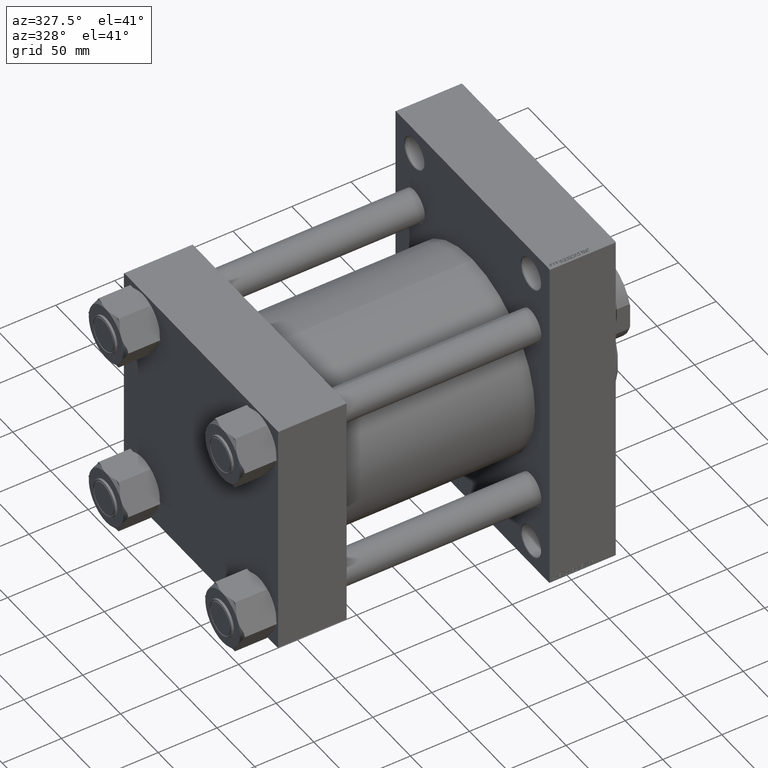
[diagram: clean part render]
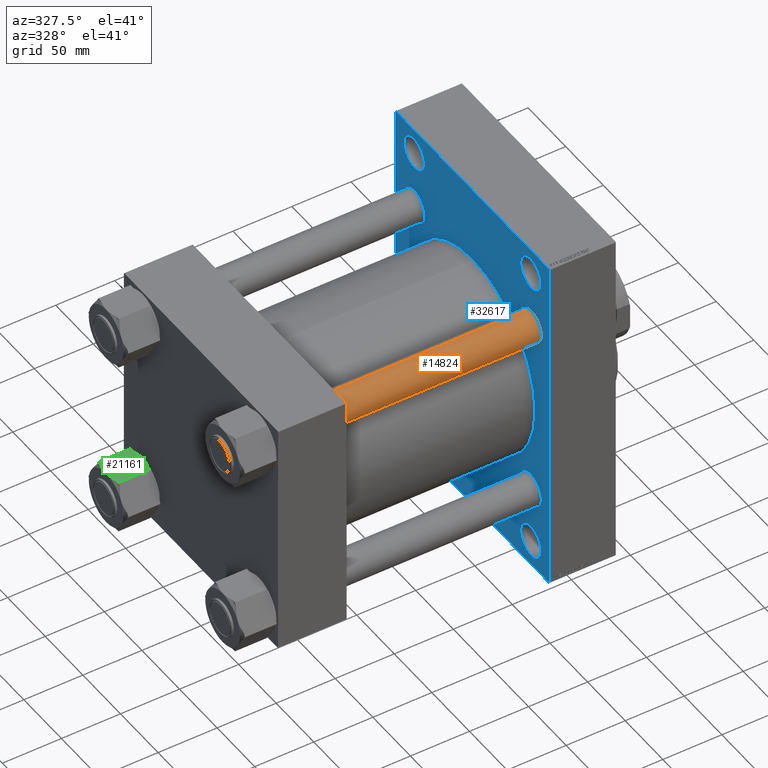
[diagram: same view with three faces highlighted in distinct colors, each labeled with its STEP entity id]
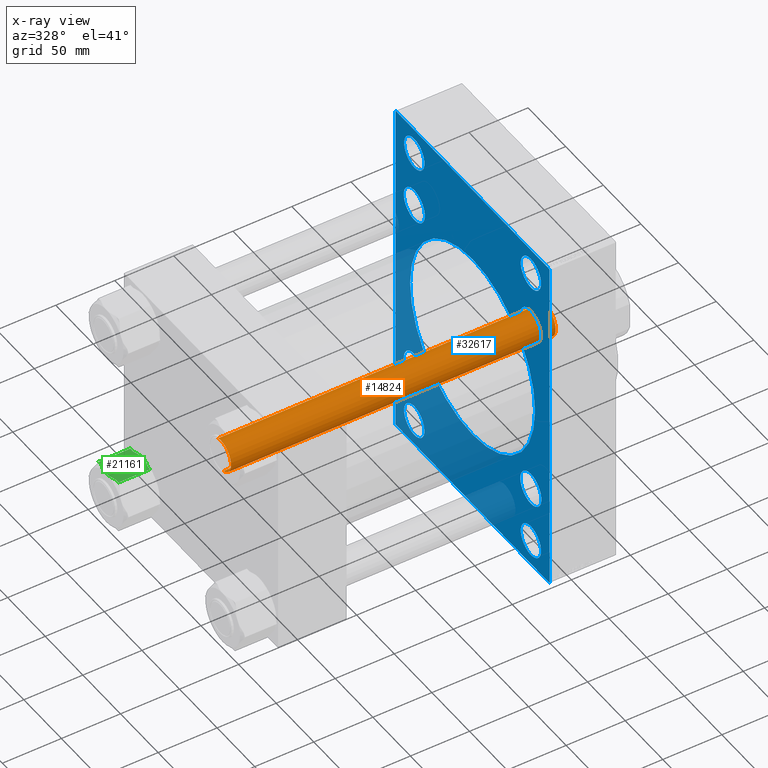
[diagram: x-ray of the same camera — body ghosted, the three highlighted faces saturated]
A machine part, auxiliary view with three faces highlighted in distinct colors.
The next image is the same camera in x-ray (body ghosted, the three faces saturated) — at least one of them is partly hidden behind the body in this view.
Their STEP definitions:

[orange] entity #14824 — the highlighted cylindrical surface (edge-blend (fillet) strip) has radius 13.5 mm, axis along (1, 0, 0).
#131 = CIRCLE ( 'NONE', #921, 13.50000000000000000 ) ;
#921 = AXIS2_PLACEMENT_3D ( 'NONE', #42675, #39309, #6728 ) ;
#1297 = FACE_OUTER_BOUND ( 'NONE', #30055, .T. ) ;
#2398 = CARTESIAN_POINT ( 'NONE',  ( -13.50000000000000000, 0.000000000000000000, 276.0000000000000000 ) ) ;
#2874 = LINE ( 'NONE', #2398, #26007 ) ;
#2973 = DIRECTION ( 'NONE',  ( -0.000000000000000000, -0.000000000000000000, -1.000000000000000000 ) ) ;
#4152 = DIRECTION ( 'NONE',  ( 0.000000000000000000, 0.000000000000000000, -1.000000000000000000 ) ) ;
#4225 = CARTESIAN_POINT ( 'NONE',  ( -13.50000000000000000, 0.000000000000000000, 0.4999999999999449329 ) ) ;
#6728 = DIRECTION ( 'NONE',  ( 1.000000000000000000, 0.000000000000000000, 0.000000000000000000 ) ) ;
#9488 = CYLINDRICAL_SURFACE ( 'NONE', #37685, 13.50000000000000000 ) ;
#10455 = VERTEX_POINT ( 'NONE', #19872 ) ;
#13165 = EDGE_CURVE ( 'NONE', #21433, #34681, #47044, .T. ) ;
#14824 = ADVANCED_FACE ( 'NONE', ( #1297 ), #9488, .T. ) ;
#14941 = CARTESIAN_POINT ( 'NONE',  ( 13.50000000000000000, 1.653273178848926867E-15, 275.4999999999999432 ) ) ;
#17604 = DIRECTION ( 'NONE',  ( -0.000000000000000000, -0.000000000000000000, -1.000000000000000000 ) ) ;
#19872 = CARTESIAN_POINT ( 'NONE',  ( -13.50000000000000000, 0.000000000000000000, 275.4999999999999432 ) ) ;
#20337 = EDGE_CURVE ( 'NONE', #10455, #21433, #21274, .T. ) ;
#21236 = DIRECTION ( 'NONE',  ( -0.000000000000000000, -0.000000000000000000, -1.000000000000000000 ) ) ;
#21274 = CIRCLE ( 'NONE', #29724, 13.50000000000000000 ) ;
#21433 = VERTEX_POINT ( 'NONE', #14941 ) ;
#22967 = DIRECTION ( 'NONE',  ( 1.000000000000000000, 0.000000000000000000, 0.000000000000000000 ) ) ;
#24601 = EDGE_CURVE ( 'NONE', #10455, #25808, #2874, .T. ) ;
#25808 = VERTEX_POINT ( 'NONE', #4225 ) ;
#26007 = VECTOR ( 'NONE', #17604, 1000.000000000000000 ) ;
#29537 = CARTESIAN_POINT ( 'NONE',  ( 13.50000000000000000, 1.653273178848926867E-15, 0.4999999999999449329 ) ) ;
#29724 = AXIS2_PLACEMENT_3D ( 'NONE', #30446, #4152, #22967 ) ;
#30055 = EDGE_LOOP ( 'NONE', ( #36651, #33195, #42802, #37717 ) ) ;
#30446 = CARTESIAN_POINT ( 'NONE',  ( 0.000000000000000000, 0.000000000000000000, 275.4999999999999432 ) ) ;
#33195 = ORIENTED_EDGE ( 'NONE', *, *, #13165, .T. ) ;
#34681 = VERTEX_POINT ( 'NONE', #29537 ) ;
#35302 = DIRECTION ( 'NONE',  ( -1.000000000000000000, 0.000000000000000000, 0.000000000000000000 ) ) ;
#36651 = ORIENTED_EDGE ( 'NONE', *, *, #20337, .T. ) ;
#37685 = AXIS2_PLACEMENT_3D ( 'NONE', #39644, #2973, #35302 ) ;
#37717 = ORIENTED_EDGE ( 'NONE', *, *, #24601, .F. ) ;
#39309 = DIRECTION ( 'NONE',  ( -0.000000000000000000, -0.000000000000000000, 1.000000000000000000 ) ) ;
#39644 = CARTESIAN_POINT ( 'NONE',  ( 0.000000000000000000, 0.000000000000000000, 276.0000000000000000 ) ) ;
#39968 = VECTOR ( 'NONE', #21236, 1000.000000000000000 ) ;
#41574 = EDGE_CURVE ( 'NONE', #34681, #25808, #131, .T. ) ;
#42675 = CARTESIAN_POINT ( 'NONE',  ( 0.000000000000000000, 0.000000000000000000, 0.4999999999999449329 ) ) ;
#42802 = ORIENTED_EDGE ( 'NONE', *, *, #41574, .T. ) ;
#43873 = CARTESIAN_POINT ( 'NONE',  ( 13.50000000000000000, 1.653273178848926867E-15, 276.0000000000000000 ) ) ;
#47044 = LINE ( 'NONE', #43873, #39968 ) ;

[blue] entity #32617 — the highlighted planar face has unit normal (-1, 0, 0).
#424 = CARTESIAN_POINT ( 'NONE',  ( 229.9999999999999716, 77.50000000000002842, 113.0000000000000426 ) ) ;
#740 = CIRCLE ( 'NONE', #43880, 14.00000000000001243 ) ;
#886 = AXIS2_PLACEMENT_3D ( 'NONE', #35979, #25132, #31652 ) ;
#890 = CIRCLE ( 'NONE', #43288, 14.00000000000001243 ) ;
#1086 = FACE_BOUND ( 'NONE', #41828, .T. ) ;
#1524 = CIRCLE ( 'NONE', #32361, 83.00000000000000000 ) ;
#1578 = ORIENTED_EDGE ( 'NONE', *, *, #16878, .T. ) ;
#1607 = ORIENTED_EDGE ( 'NONE', *, *, #36143, .T. ) ;
#1649 = CARTESIAN_POINT ( 'NONE',  ( 229.9999999999999716, -77.44999999999996021, -91.45000000000004547 ) ) ;
#1904 = CARTESIAN_POINT ( 'NONE',  ( 229.9999999999999716, -125.2499999999971436, -125.2500000000041069 ) ) ;
#2270 = VERTEX_POINT ( 'NONE', #29842 ) ;
#2304 = ORIENTED_EDGE ( 'NONE', *, *, #32331, .T. ) ;
#2638 = CARTESIAN_POINT ( 'NONE',  ( 229.9999999999999716, -77.49999999999997158, 126.5000000000000284 ) ) ;
#2680 = DIRECTION ( 'NONE',  ( 0.000000000000000000, 0.000000000000000000, 1.000000000000000000 ) ) ;
#2811 = DIRECTION ( 'NONE',  ( 0.000000000000000000, 0.000000000000000000, -1.000000000000000000 ) ) ;
#2898 = CARTESIAN_POINT ( 'NONE',  ( 229.9999999999999716, -77.44999999999996021, -77.45000000000003126 ) ) ;
#2953 = VERTEX_POINT ( 'NONE', #8618 ) ;
#3034 = EDGE_CURVE ( 'NONE', #7591, #38178, #31049, .T. ) ;
#3302 = EDGE_LOOP ( 'NONE', ( #24029, #36098, #23088, #1578, #3750, #8510, #20945, #15090 ) ) ;
#3575 = EDGE_CURVE ( 'NONE', #21946, #25980, #9729, .T. ) ;
#3750 = ORIENTED_EDGE ( 'NONE', *, *, #22895, .F. ) ;
#3752 = FACE_BOUND ( 'NONE', #9762, .T. ) ;
#3818 = AXIS2_PLACEMENT_3D ( 'NONE', #3992, #37505, #44738 ) ;
#3824 = CARTESIAN_POINT ( 'NONE',  ( 229.9999999999999716, 77.50000000000002842, -126.5000000000000000 ) ) ;
#3992 = CARTESIAN_POINT ( 'NONE',  ( 229.9999999999999716, -77.44999999999996021, 77.45000000000003126 ) ) ;
#4023 = CIRCLE ( 'NONE', #20993, 13.50000000000001243 ) ;
#4264 = CARTESIAN_POINT ( 'NONE',  ( 229.9999999999999716, 125.2499999999999716, 125.2499999999999716 ) ) ;
#4421 = DIRECTION ( 'NONE',  ( 1.000000000000000000, -0.000000000000000000, 0.000000000000000000 ) ) ;
#4499 = DIRECTION ( 'NONE',  ( 0.000000000000000000, 0.000000000000000000, 1.000000000000000000 ) ) ;
#4934 = VERTEX_POINT ( 'NONE', #1649 ) ;
#4965 = ORIENTED_EDGE ( 'NONE', *, *, #45012, .T. ) ;
#5450 = CIRCLE ( 'NONE', #32422, 13.49999999999995737 ) ;
#5632 = DIRECTION ( 'NONE',  ( -0.000000000000000000, -0.7071067811865868746, -0.7071067811865081598 ) ) ;
#6036 = DIRECTION ( 'NONE',  ( 0.000000000000000000, 0.000000000000000000, 1.000000000000000000 ) ) ;
#6086 = CARTESIAN_POINT ( 'NONE',  ( 229.9999999999999716, 102.5000000000000142, -148.5000000000000000 ) ) ;
#6261 = DIRECTION ( 'NONE',  ( 1.000000000000000000, -0.000000000000000000, 0.000000000000000000 ) ) ;
#6302 = DIRECTION ( 'NONE',  ( 1.000000000000000000, -0.000000000000000000, 0.000000000000000000 ) ) ;
#6440 = EDGE_LOOP ( 'NONE', ( #36804, #19443 ) ) ;
#6559 = VERTEX_POINT ( 'NONE', #38214 ) ;
#6621 = EDGE_CURVE ( 'NONE', #46058, #2270, #16769, .T. ) ;
#6786 = AXIS2_PLACEMENT_3D ( 'NONE', #47127, #14092, #29041 ) ;
#7067 = VERTEX_POINT ( 'NONE', #18048 ) ;
#7125 = CARTESIAN_POINT ( 'NONE',  ( 229.9999999999999716, 102.5000000000000142, 148.5000000000000000 ) ) ;
#7153 = CIRCLE ( 'NONE', #44135, 13.49999999999990052 ) ;
#7591 = VERTEX_POINT ( 'NONE', #40841 ) ;
#7762 = DIRECTION ( 'NONE',  ( 0.000000000000000000, 0.000000000000000000, 1.000000000000000000 ) ) ;
#8085 = PLANE ( 'NONE',  #20787 ) ;
#8332 = DIRECTION ( 'NONE',  ( -0.000000000000000000, 0.000000000000000000, 1.000000000000000000 ) ) ;
#8510 = ORIENTED_EDGE ( 'NONE', *, *, #19541, .T. ) ;
#8618 = CARTESIAN_POINT ( 'NONE',  ( 229.9999999999999716, -101.9999999999999574, -148.5000000000000284 ) ) ;
#8897 = CIRCLE ( 'NONE', #24336, 13.49999999999995737 ) ;
#9136 = CARTESIAN_POINT ( 'NONE',  ( 229.9999999999999716, -77.44999999999996021, -63.45000000000001705 ) ) ;
#9613 = DIRECTION ( 'NONE',  ( 1.000000000000000000, -0.000000000000000000, 0.000000000000000000 ) ) ;
#9729 = CIRCLE ( 'NONE', #37473, 13.49999999999990052 ) ;
#9762 = EDGE_LOOP ( 'NONE', ( #37051, #24103 ) ) ;
#9796 = DIRECTION ( 'NONE',  ( 1.000000000000000000, -0.000000000000000000, 0.000000000000000000 ) ) ;
#9881 = EDGE_CURVE ( 'NONE', #45739, #23377, #29209, .T. ) ;
#9986 = CIRCLE ( 'NONE', #3818, 14.00000000000001243 ) ;
#10377 = DIRECTION ( 'NONE',  ( 0.000000000000000000, 0.000000000000000000, -1.000000000000000000 ) ) ;
#10751 = ORIENTED_EDGE ( 'NONE', *, *, #37317, .T. ) ;
#10784 = ORIENTED_EDGE ( 'NONE', *, *, #32664, .T. ) ;
#11023 = ORIENTED_EDGE ( 'NONE', *, *, #32343, .T. ) ;
#11058 = CARTESIAN_POINT ( 'NONE',  ( 229.9999999999999716, 102.0000000000000142, -148.5000000000000000 ) ) ;
#11178 = CARTESIAN_POINT ( 'NONE',  ( 229.9999999999999716, 77.44999999999998863, -91.45000000000003126 ) ) ;
#11329 = EDGE_CURVE ( 'NONE', #44329, #24840, #740, .T. ) ;
#11454 = FACE_BOUND ( 'NONE', #33368, .T. ) ;
#11734 = CARTESIAN_POINT ( 'NONE',  ( 229.9999999999999716, -77.49999999999998579, -126.5000000000000000 ) ) ;
#12295 = DIRECTION ( 'NONE',  ( 0.000000000000000000, 0.000000000000000000, 1.000000000000000000 ) ) ;
#13096 = CARTESIAN_POINT ( 'NONE',  ( 229.9999999999999716, 7.562483218957820855E-15, -83.00000000000000000 ) ) ;
#13198 = DIRECTION ( 'NONE',  ( 0.000000000000000000, 0.000000000000000000, 1.000000000000000000 ) ) ;
#13280 = VECTOR ( 'NONE', #10377, 1000.000000000000000 ) ;
#13286 = DIRECTION ( 'NONE',  ( 1.000000000000000000, -0.000000000000000000, 0.000000000000000000 ) ) ;
#13429 = CARTESIAN_POINT ( 'NONE',  ( 229.9999999999999716, 77.44999999999998863, 77.45000000000001705 ) ) ;
#13539 = CARTESIAN_POINT ( 'NONE',  ( 229.9999999999999716, 77.44999999999998863, -77.45000000000001705 ) ) ;
#13789 = AXIS2_PLACEMENT_3D ( 'NONE', #42929, #13286, #6036 ) ;
#14092 = DIRECTION ( 'NONE',  ( 1.000000000000000000, -0.000000000000000000, 0.000000000000000000 ) ) ;
#14223 = DIRECTION ( 'NONE',  ( 0.000000000000000000, 0.000000000000000000, 1.000000000000000000 ) ) ;
#14405 = VECTOR ( 'NONE', #32929, 1000.000000000000000 ) ;
#14410 = ORIENTED_EDGE ( 'NONE', *, *, #23773, .T. ) ;
#14436 = VECTOR ( 'NONE', #42512, 1000.000000000000000 ) ;
#14978 = LINE ( 'NONE', #15215, #30841 ) ;
#15090 = ORIENTED_EDGE ( 'NONE', *, *, #32447, .T. ) ;
#15092 = CARTESIAN_POINT ( 'NONE',  ( 229.9999999999999716, 125.2499999999943441, -125.2500000000082707 ) ) ;
#15215 = CARTESIAN_POINT ( 'NONE',  ( 229.9999999999999716, -125.2500000000000284, 125.2500000000000284 ) ) ;
#15323 = FACE_BOUND ( 'NONE', #28853, .T. ) ;
#15725 = VERTEX_POINT ( 'NONE', #16289 ) ;
#15769 = EDGE_LOOP ( 'NONE', ( #45963, #42148 ) ) ;
#16003 = CARTESIAN_POINT ( 'NONE',  ( 229.9999999999999716, -2.602085213965210642E-15, 0.000000000000000000 ) ) ;
#16217 = AXIS2_PLACEMENT_3D ( 'NONE', #2898, #17626, #17868 ) ;
#16289 = CARTESIAN_POINT ( 'NONE',  ( 229.9999999999999716, 77.50000000000002842, -139.9999999999999716 ) ) ;
#16449 = CARTESIAN_POINT ( 'NONE',  ( 229.9999999999999716, -77.44999999999996021, 91.45000000000004547 ) ) ;
#16769 = CIRCLE ( 'NONE', #6786, 14.00000000000001243 ) ;
#16878 = EDGE_CURVE ( 'NONE', #41945, #44448, #14978, .T. ) ;
#17053 = DIRECTION ( 'NONE',  ( 1.000000000000000000, -0.000000000000000000, 0.000000000000000000 ) ) ;
#17089 = EDGE_CURVE ( 'NONE', #4934, #30992, #45467, .T. ) ;
#17387 = VECTOR ( 'NONE', #25756, 1000.000000000000114 ) ;
#17626 = DIRECTION ( 'NONE',  ( 1.000000000000000000, -0.000000000000000000, 0.000000000000000000 ) ) ;
#17868 = DIRECTION ( 'NONE',  ( 0.000000000000000000, 0.000000000000000000, 1.000000000000000000 ) ) ;
#18022 = EDGE_CURVE ( 'NONE', #41945, #6559, #24631, .T. ) ;
#18048 = CARTESIAN_POINT ( 'NONE',  ( 229.9999999999999716, -2.602085213965210642E-15, 83.00000000000000000 ) ) ;
#18603 = EDGE_CURVE ( 'NONE', #23377, #45739, #4023, .T. ) ;
#18705 = EDGE_LOOP ( 'NONE', ( #24326, #28424 ) ) ;
#18786 = DIRECTION ( 'NONE',  ( 1.000000000000000000, -0.000000000000000000, 0.000000000000000000 ) ) ;
#18969 = DIRECTION ( 'NONE',  ( 0.000000000000000000, 0.000000000000000000, -1.000000000000000000 ) ) ;
#19139 = DIRECTION ( 'NONE',  ( 0.000000000000000000, 0.000000000000000000, 1.000000000000000000 ) ) ;
#19271 = EDGE_CURVE ( 'NONE', #2953, #6559, #20255, .T. ) ;
#19441 = CARTESIAN_POINT ( 'NONE',  ( 229.9999999999999716, 0.000000000000000000, 0.000000000000000000 ) ) ;
#19443 = ORIENTED_EDGE ( 'NONE', *, *, #17089, .T. ) ;
#19466 = DIRECTION ( 'NONE',  ( 1.000000000000000000, -0.000000000000000000, 0.000000000000000000 ) ) ;
#19482 = EDGE_CURVE ( 'NONE', #38585, #15725, #8897, .T. ) ;
#19535 = DIRECTION ( 'NONE',  ( 0.000000000000000000, -0.7071067811865672237, 0.7071067811865279218 ) ) ;
#19541 = EDGE_CURVE ( 'NONE', #44680, #7591, #44071, .T. ) ;
#20255 = LINE ( 'NONE', #1904, #20477 ) ;
#20477 = VECTOR ( 'NONE', #19535, 1000.000000000000000 ) ;
#20787 = AXIS2_PLACEMENT_3D ( 'NONE', #19441, #22088, #8332 ) ;
#20945 = ORIENTED_EDGE ( 'NONE', *, *, #3034, .T. ) ;
#20979 = DIRECTION ( 'NONE',  ( 0.000000000000000000, 0.000000000000000000, 1.000000000000000000 ) ) ;
#20993 = AXIS2_PLACEMENT_3D ( 'NONE', #11734, #19466, #4499 ) ;
#21946 = VERTEX_POINT ( 'NONE', #44421 ) ;
#22088 = DIRECTION ( 'NONE',  ( -1.000000000000000000, 0.000000000000000000, -0.000000000000000000 ) ) ;
#22895 = EDGE_CURVE ( 'NONE', #44680, #44448, #29092, .T. ) ;
#23088 = ORIENTED_EDGE ( 'NONE', *, *, #18022, .F. ) ;
#23308 = DIRECTION ( 'NONE',  ( 1.000000000000000000, 0.000000000000000000, 0.000000000000000000 ) ) ;
#23377 = VERTEX_POINT ( 'NONE', #34239 ) ;
#23773 = EDGE_CURVE ( 'NONE', #37496, #32896, #25228, .T. ) ;
#23841 = VECTOR ( 'NONE', #5632, 1000.000000000000000 ) ;
#24029 = ORIENTED_EDGE ( 'NONE', *, *, #27270, .T. ) ;
#24103 = ORIENTED_EDGE ( 'NONE', *, *, #3575, .T. ) ;
#24326 = ORIENTED_EDGE ( 'NONE', *, *, #9881, .T. ) ;
#24336 = AXIS2_PLACEMENT_3D ( 'NONE', #27725, #9613, #24339 ) ;
#24339 = DIRECTION ( 'NONE',  ( 0.000000000000000000, 0.000000000000000000, 1.000000000000000000 ) ) ;
#24631 = LINE ( 'NONE', #32100, #13280 ) ;
#24840 = VERTEX_POINT ( 'NONE', #26965 ) ;
#25132 = DIRECTION ( 'NONE',  ( 1.000000000000000000, -0.000000000000000000, 0.000000000000000000 ) ) ;
#25228 = CIRCLE ( 'NONE', #33669, 14.00000000000001243 ) ;
#25756 = DIRECTION ( 'NONE',  ( 0.000000000000000000, 0.7071067811865474617, -0.7071067811865474617 ) ) ;
#25980 = VERTEX_POINT ( 'NONE', #32194 ) ;
#26669 = FACE_BOUND ( 'NONE', #6440, .T. ) ;
#26965 = CARTESIAN_POINT ( 'NONE',  ( 229.9999999999999716, 77.44999999999998863, 63.45000000000000284 ) ) ;
#27270 = EDGE_CURVE ( 'NONE', #40890, #2953, #35754, .T. ) ;
#27359 = VERTEX_POINT ( 'NONE', #13096 ) ;
#27725 = CARTESIAN_POINT ( 'NONE',  ( 229.9999999999999716, 77.50000000000002842, -126.5000000000000000 ) ) ;
#27840 = AXIS2_PLACEMENT_3D ( 'NONE', #37775, #23308, #18969 ) ;
#28424 = ORIENTED_EDGE ( 'NONE', *, *, #18603, .T. ) ;
#28853 = EDGE_LOOP ( 'NONE', ( #29736, #1607 ) ) ;
#28942 = DIRECTION ( 'NONE',  ( 1.000000000000000000, -0.000000000000000000, 0.000000000000000000 ) ) ;
#29041 = DIRECTION ( 'NONE',  ( 0.000000000000000000, 0.000000000000000000, 1.000000000000000000 ) ) ;
#29092 = LINE ( 'NONE', #7125, #14405 ) ;
#29209 = CIRCLE ( 'NONE', #13789, 13.50000000000001243 ) ;
#29736 = ORIENTED_EDGE ( 'NONE', *, *, #19482, .T. ) ;
#29842 = CARTESIAN_POINT ( 'NONE',  ( 229.9999999999999716, 77.44999999999998863, -63.45000000000000284 ) ) ;
#30107 = CARTESIAN_POINT ( 'NONE',  ( 229.9999999999999716, 77.44999999999998863, 91.45000000000003126 ) ) ;
#30517 = FACE_BOUND ( 'NONE', #15769, .T. ) ;
#30841 = VECTOR ( 'NONE', #44637, 1000.000000000000114 ) ;
#30888 = CARTESIAN_POINT ( 'NONE',  ( 229.9999999999999716, 77.50000000000002842, 139.9999999999999716 ) ) ;
#30992 = VERTEX_POINT ( 'NONE', #9136 ) ;
#31049 = LINE ( 'NONE', #39485, #42821 ) ;
#31529 = CARTESIAN_POINT ( 'NONE',  ( 229.9999999999999716, -77.44999999999996021, 77.45000000000003126 ) ) ;
#31557 = CIRCLE ( 'NONE', #46181, 14.00000000000001243 ) ;
#31652 = DIRECTION ( 'NONE',  ( 0.000000000000000000, 0.000000000000000000, 1.000000000000000000 ) ) ;
#31766 = CARTESIAN_POINT ( 'NONE',  ( 229.9999999999999716, 77.50000000000002842, 126.5000000000000000 ) ) ;
#31781 = ORIENTED_EDGE ( 'NONE', *, *, #34056, .T. ) ;
#32100 = CARTESIAN_POINT ( 'NONE',  ( 229.9999999999999716, -102.5000000000000142, 148.5000000000000000 ) ) ;
#32194 = CARTESIAN_POINT ( 'NONE',  ( 229.9999999999999716, -77.49999999999997158, 139.9999999999999432 ) ) ;
#32331 = EDGE_CURVE ( 'NONE', #24840, #44329, #31557, .T. ) ;
#32343 = EDGE_CURVE ( 'NONE', #44304, #44100, #46950, .T. ) ;
#32361 = AXIS2_PLACEMENT_3D ( 'NONE', #16003, #34328, #37952 ) ;
#32422 = AXIS2_PLACEMENT_3D ( 'NONE', #3824, #18786, #40036 ) ;
#32447 = EDGE_CURVE ( 'NONE', #38178, #40890, #42043, .T. ) ;
#32617 = ADVANCED_FACE ( 'NONE', ( #3752, #44982, #15323, #41124, #1086, #45219, #30517, #26669, #11454, #44263 ), #8085, .T. ) ;
#32664 = EDGE_CURVE ( 'NONE', #32896, #37496, #9986, .T. ) ;
#32832 = EDGE_LOOP ( 'NONE', ( #41137, #2304 ) ) ;
#32896 = VERTEX_POINT ( 'NONE', #40138 ) ;
#32929 = DIRECTION ( 'NONE',  ( 0.000000000000000000, -1.000000000000000000, 0.000000000000000000 ) ) ;
#33009 = CARTESIAN_POINT ( 'NONE',  ( 229.9999999999999716, -102.0000000000000568, 148.5000000000000000 ) ) ;
#33368 = EDGE_LOOP ( 'NONE', ( #10751, #31781 ) ) ;
#33669 = AXIS2_PLACEMENT_3D ( 'NONE', #31529, #9796, #13198 ) ;
#33845 = AXIS2_PLACEMENT_3D ( 'NONE', #31766, #17053, #38098 ) ;
#34056 = EDGE_CURVE ( 'NONE', #27359, #7067, #1524, .T. ) ;
#34239 = CARTESIAN_POINT ( 'NONE',  ( 229.9999999999999716, -77.49999999999998579, -140.0000000000000000 ) ) ;
#34328 = DIRECTION ( 'NONE',  ( 1.000000000000000000, 0.000000000000000000, 0.000000000000000000 ) ) ;
#35754 = LINE ( 'NONE', #6086, #14436 ) ;
#35979 = CARTESIAN_POINT ( 'NONE',  ( 229.9999999999999716, -77.44999999999996021, -77.45000000000003126 ) ) ;
#36098 = ORIENTED_EDGE ( 'NONE', *, *, #19271, .T. ) ;
#36143 = EDGE_CURVE ( 'NONE', #15725, #38585, #5450, .T. ) ;
#36804 = ORIENTED_EDGE ( 'NONE', *, *, #41352, .T. ) ;
#37051 = ORIENTED_EDGE ( 'NONE', *, *, #44246, .T. ) ;
#37154 = EDGE_LOOP ( 'NONE', ( #4965, #11023 ) ) ;
#37179 = CIRCLE ( 'NONE', #37212, 13.49999999999995737 ) ;
#37212 = AXIS2_PLACEMENT_3D ( 'NONE', #41802, #4421, #19139 ) ;
#37317 = EDGE_CURVE ( 'NONE', #7067, #27359, #42465, .T. ) ;
#37473 = AXIS2_PLACEMENT_3D ( 'NONE', #2638, #6261, #20979 ) ;
#37496 = VERTEX_POINT ( 'NONE', #16449 ) ;
#37505 = DIRECTION ( 'NONE',  ( 1.000000000000000000, -0.000000000000000000, 0.000000000000000000 ) ) ;
#37761 = EDGE_CURVE ( 'NONE', #2270, #46058, #890, .T. ) ;
#37775 = CARTESIAN_POINT ( 'NONE',  ( 229.9999999999999716, -2.602085213965210642E-15, 0.000000000000000000 ) ) ;
#37952 = DIRECTION ( 'NONE',  ( 0.000000000000000000, 0.000000000000000000, -1.000000000000000000 ) ) ;
#38098 = DIRECTION ( 'NONE',  ( 0.000000000000000000, 0.000000000000000000, 1.000000000000000000 ) ) ;
#38168 = CARTESIAN_POINT ( 'NONE',  ( 229.9999999999999716, 77.50000000000002842, -113.0000000000000426 ) ) ;
#38178 = VERTEX_POINT ( 'NONE', #44251 ) ;
#38214 = CARTESIAN_POINT ( 'NONE',  ( 229.9999999999999716, -102.5000000000000142, -147.9999999999998863 ) ) ;
#38585 = VERTEX_POINT ( 'NONE', #38168 ) ;
#39079 = CARTESIAN_POINT ( 'NONE',  ( 229.9999999999999716, -77.49999999999997158, 126.5000000000000284 ) ) ;
#39404 = CIRCLE ( 'NONE', #886, 14.00000000000001243 ) ;
#39485 = CARTESIAN_POINT ( 'NONE',  ( 229.9999999999999716, 102.5000000000000142, 148.5000000000000000 ) ) ;
#40036 = DIRECTION ( 'NONE',  ( 0.000000000000000000, 0.000000000000000000, 1.000000000000000000 ) ) ;
#40138 = CARTESIAN_POINT ( 'NONE',  ( 229.9999999999999716, -77.44999999999996021, 63.45000000000001705 ) ) ;
#40803 = CARTESIAN_POINT ( 'NONE',  ( 229.9999999999999716, 77.44999999999998863, 77.45000000000001705 ) ) ;
#40841 = CARTESIAN_POINT ( 'NONE',  ( 229.9999999999999716, 102.5000000000000142, 147.9999999999999432 ) ) ;
#40890 = VERTEX_POINT ( 'NONE', #11058 ) ;
#41124 = FACE_BOUND ( 'NONE', #37154, .T. ) ;
#41137 = ORIENTED_EDGE ( 'NONE', *, *, #11329, .T. ) ;
#41352 = EDGE_CURVE ( 'NONE', #30992, #4934, #39404, .T. ) ;
#41714 = DIRECTION ( 'NONE',  ( 1.000000000000000000, -0.000000000000000000, 0.000000000000000000 ) ) ;
#41802 = CARTESIAN_POINT ( 'NONE',  ( 229.9999999999999716, 77.50000000000002842, 126.5000000000000000 ) ) ;
#41828 = EDGE_LOOP ( 'NONE', ( #14410, #10784 ) ) ;
#41945 = VERTEX_POINT ( 'NONE', #45885 ) ;
#42043 = LINE ( 'NONE', #15092, #23841 ) ;
#42148 = ORIENTED_EDGE ( 'NONE', *, *, #6621, .T. ) ;
#42465 = CIRCLE ( 'NONE', #27840, 83.00000000000000000 ) ;
#42512 = DIRECTION ( 'NONE',  ( 0.000000000000000000, -1.000000000000000000, -1.353930517835556727E-16 ) ) ;
#42821 = VECTOR ( 'NONE', #2811, 1000.000000000000000 ) ;
#42929 = CARTESIAN_POINT ( 'NONE',  ( 229.9999999999999716, -77.49999999999998579, -126.5000000000000000 ) ) ;
#43288 = AXIS2_PLACEMENT_3D ( 'NONE', #13539, #6302, #2680 ) ;
#43880 = AXIS2_PLACEMENT_3D ( 'NONE', #40803, #44894, #7762 ) ;
#44039 = CARTESIAN_POINT ( 'NONE',  ( 229.9999999999999716, 101.9999999999999574, 148.5000000000000000 ) ) ;
#44071 = LINE ( 'NONE', #4264, #17387 ) ;
#44100 = VERTEX_POINT ( 'NONE', #30888 ) ;
#44135 = AXIS2_PLACEMENT_3D ( 'NONE', #39079, #28942, #14223 ) ;
#44246 = EDGE_CURVE ( 'NONE', #25980, #21946, #7153, .T. ) ;
#44251 = CARTESIAN_POINT ( 'NONE',  ( 229.9999999999999716, 102.5000000000000142, -148.0000000000000568 ) ) ;
#44263 = FACE_OUTER_BOUND ( 'NONE', #3302, .T. ) ;
#44274 = CARTESIAN_POINT ( 'NONE',  ( 229.9999999999999716, -77.49999999999998579, -112.9999999999999858 ) ) ;
#44304 = VERTEX_POINT ( 'NONE', #424 ) ;
#44329 = VERTEX_POINT ( 'NONE', #30107 ) ;
#44421 = CARTESIAN_POINT ( 'NONE',  ( 229.9999999999999716, -77.49999999999997158, 113.0000000000001279 ) ) ;
#44448 = VERTEX_POINT ( 'NONE', #33009 ) ;
#44637 = DIRECTION ( 'NONE',  ( -0.000000000000000000, 0.7071067811865474617, 0.7071067811865474617 ) ) ;
#44680 = VERTEX_POINT ( 'NONE', #44039 ) ;
#44738 = DIRECTION ( 'NONE',  ( 0.000000000000000000, 0.000000000000000000, 1.000000000000000000 ) ) ;
#44894 = DIRECTION ( 'NONE',  ( 1.000000000000000000, -0.000000000000000000, 0.000000000000000000 ) ) ;
#44982 = FACE_BOUND ( 'NONE', #18705, .T. ) ;
#45012 = EDGE_CURVE ( 'NONE', #44100, #44304, #37179, .T. ) ;
#45219 = FACE_BOUND ( 'NONE', #32832, .T. ) ;
#45467 = CIRCLE ( 'NONE', #16217, 14.00000000000001243 ) ;
#45739 = VERTEX_POINT ( 'NONE', #44274 ) ;
#45885 = CARTESIAN_POINT ( 'NONE',  ( 229.9999999999999716, -102.5000000000000142, 148.0000000000000568 ) ) ;
#45963 = ORIENTED_EDGE ( 'NONE', *, *, #37761, .T. ) ;
#46058 = VERTEX_POINT ( 'NONE', #11178 ) ;
#46181 = AXIS2_PLACEMENT_3D ( 'NONE', #13429, #41714, #12295 ) ;
#46950 = CIRCLE ( 'NONE', #33845, 13.49999999999995737 ) ;
#47127 = CARTESIAN_POINT ( 'NONE',  ( 229.9999999999999716, 77.44999999999998863, -77.45000000000001705 ) ) ;

[green] entity #21161 — the highlighted planar face has unit normal (0, 0, -1).
#646 = CARTESIAN_POINT ( 'NONE',  ( 5.801497649255006550, 23.05359624874177271, -0.7053567131665720025 ) ) ;
#667 = CARTESIAN_POINT ( 'NONE',  ( -1.690332161126401500, 23.05359624874177271, -31.00000000000000355 ) ) ;
#1076 = B_SPLINE_CURVE_WITH_KNOTS ( 'NONE', 3,
 ( #29866, #26255, #40951, #7915, #22631, #6976, #667, #15392 ),
 .UNSPECIFIED., .F., .F.,
 ( 4, 2, 2, 4 ),
 ( 0.03704433557245612879, 0.03955680769153651494, 0.04206927981061690108, 0.04709422404877768031 ),
 .UNSPECIFIED. ) ;
#1098 = CARTESIAN_POINT ( 'NONE',  ( 2.113373616412100642, 23.05359624874177271, -30.90705919660666368 ) ) ;
#1590 = CARTESIAN_POINT ( 'NONE',  ( 8.238500401260294481, 23.05359624874176916, -29.61483447804336322 ) ) ;
#2627 = VECTOR ( 'NONE', #36381, 1000.000000000000000 ) ;
#2901 = CARTESIAN_POINT ( 'NONE',  ( 9.808893158505055609, 23.05359624874177271, -2.000000000000000000 ) ) ;
#2927 = EDGE_CURVE ( 'NONE', #34591, #42714, #41654, .T. ) ;
#3103 = LINE ( 'NONE', #17829, #2627 ) ;
#3331 = CARTESIAN_POINT ( 'NONE',  ( -13.30999999999999872, 23.05359624874177271, -28.99999999999999645 ) ) ;
#4232 = VERTEX_POINT ( 'NONE', #17241 ) ;
#4441 = CARTESIAN_POINT ( 'NONE',  ( -9.808893158505068044, 23.05359624874177271, -28.99999999999999645 ) ) ;
#5012 = CARTESIAN_POINT ( 'NONE',  ( 0.000000000000000000, 23.05359624874177271, 0.000000000000000000 ) ) ;
#5167 = VERTEX_POINT ( 'NONE', #3331 ) ;
#5227 = DIRECTION ( 'NONE',  ( 1.000000000000000000, 0.000000000000000000, 0.000000000000000000 ) ) ;
#5321 = EDGE_CURVE ( 'NONE', #47436, #10964, #38269, .T. ) ;
#6205 = ORIENTED_EDGE ( 'NONE', *, *, #46653, .F. ) ;
#6215 = B_SPLINE_CURVE_WITH_KNOTS ( 'NONE', 3,
 ( #5012, #42146, #19735, #44804, #45045, #11769, #37816, #34439, #41186, #15868 ),
 .UNSPECIFIED., .F., .F.,
 ( 4, 2, 2, 2, 4 ),
 ( 0.04709422404877768031, 0.04834823400549315836, 0.04960224396220863641, 0.05211026387563959944, 0.05712630370250151163 ),
 .UNSPECIFIED. ) ;
#6225 = EDGE_CURVE ( 'NONE', #7930, #13851, #24488, .T. ) ;
#6610 = EDGE_LOOP ( 'NONE', ( #11031, #31343, #44741, #41415, #42014, #6205, #25271, #23884, #16400, #9426 ) ) ;
#6976 = CARTESIAN_POINT ( 'NONE',  ( -3.350210548520255571, 23.05359624874177271, -30.81266480856789869 ) ) ;
#7763 = FACE_OUTER_BOUND ( 'NONE', #6610, .T. ) ;
#7915 = CARTESIAN_POINT ( 'NONE',  ( -6.612214801278784471, 23.05359624874176916, -30.08273205772793091 ) ) ;
#7930 = VERTEX_POINT ( 'NONE', #2901 ) ;
#9426 = ORIENTED_EDGE ( 'NONE', *, *, #16308, .F. ) ;
#9644 = CARTESIAN_POINT ( 'NONE',  ( -13.30999999999999872, 23.05359624874177271, -28.99999999999999645 ) ) ;
#9654 = CARTESIAN_POINT ( 'NONE',  ( 0.000000000000000000, 23.05359624874177271, 0.000000000000000000 ) ) ;
#9809 = EDGE_CURVE ( 'NONE', #5167, #21701, #13999, .T. ) ;
#10587 = CARTESIAN_POINT ( 'NONE',  ( 13.31000000000000227, 23.05359624874177271, -2.000000000000001776 ) ) ;
#10964 = VERTEX_POINT ( 'NONE', #26998 ) ;
#11031 = ORIENTED_EDGE ( 'NONE', *, *, #9809, .F. ) ;
#11769 = CARTESIAN_POINT ( 'NONE',  ( -3.366747807636247813, 23.05359624874176561, -0.2297327368970412120 ) ) ;
#11982 = CARTESIAN_POINT ( 'NONE',  ( 0.000000000000000000, 23.05359624874177271, 0.000000000000000000 ) ) ;
#12231 = CARTESIAN_POINT ( 'NONE',  ( 3.350210548520252907, 23.05359624874177626, -0.1873351914320967315 ) ) ;
#12451 = CARTESIAN_POINT ( 'NONE',  ( 0.8470567002417603852, 23.05359624874177626, -30.98831017079349337 ) ) ;
#13024 = VECTOR ( 'NONE', #46795, 1000.000000000000000 ) ;
#13851 = VERTEX_POINT ( 'NONE', #9654 ) ;
#13999 = LINE ( 'NONE', #9644, #13024 ) ;
#15366 = CARTESIAN_POINT ( 'NONE',  ( 1.690332161126403276, 23.05359624874177626, -2.439454888092385470E-16 ) ) ;
#15392 = CARTESIAN_POINT ( 'NONE',  ( 0.000000000000000000, 23.05359624874177271, -31.00000000000000000 ) ) ;
#15868 = CARTESIAN_POINT ( 'NONE',  ( -9.808893158505055609, 23.05359624874177271, -2.000000000000000000 ) ) ;
#16094 = CARTESIAN_POINT ( 'NONE',  ( 8.222377524857016340, 23.05359624874177271, -1.410427084452076096 ) ) ;
#16308 = EDGE_CURVE ( 'NONE', #21701, #4232, #1076, .T. ) ;
#16309 = CARTESIAN_POINT ( 'NONE',  ( 0.4218342054646869732, 23.05359624874177271, -31.00000000000001066 ) ) ;
#16314 = VERTEX_POINT ( 'NONE', #10587 ) ;
#16372 = EDGE_CURVE ( 'NONE', #13851, #34591, #6215, .T. ) ;
#16400 = ORIENTED_EDGE ( 'NONE', *, *, #17513, .F. ) ;
#17241 = CARTESIAN_POINT ( 'NONE',  ( 0.000000000000000000, 23.05359624874177271, -31.00000000000000000 ) ) ;
#17513 = EDGE_CURVE ( 'NONE', #4232, #47436, #31111, .T. ) ;
#17582 = EDGE_CURVE ( 'NONE', #5167, #42714, #20636, .T. ) ;
#17829 = CARTESIAN_POINT ( 'NONE',  ( -13.30999999999999872, 23.05359624874177271, -2.000000000000001776 ) ) ;
#19209 = CARTESIAN_POINT ( 'NONE',  ( 6.641506094493665024, 23.05359624874177626, -30.11551404775776319 ) ) ;
#19240 = CARTESIAN_POINT ( 'NONE',  ( 9.808893158505055609, 23.05359624874177271, -2.000000000000000000 ) ) ;
#19487 = CARTESIAN_POINT ( 'NONE',  ( -13.30999999999999872, 23.05359624874177271, -2.000000000000001776 ) ) ;
#19735 = CARTESIAN_POINT ( 'NONE',  ( -0.8470567002417573876, 23.05359624874177271, -0.01168982920650373826 ) ) ;
#20304 = DIRECTION ( 'NONE',  ( 0.000000000000000000, -1.000000000000000000, 0.000000000000000000 ) ) ;
#20636 = LINE ( 'NONE', #21356, #39481 ) ;
#20735 = CARTESIAN_POINT ( 'NONE',  ( 13.31000000000000405, 23.05359624874177271, -31.00000000000000000 ) ) ;
#21161 = ADVANCED_FACE ( 'NONE', ( #7763 ), #22485, .F. ) ;
#21356 = CARTESIAN_POINT ( 'NONE',  ( -13.30999999999999872, 23.05359624874177271, -31.00000000000000000 ) ) ;
#21701 = VERTEX_POINT ( 'NONE', #4441 ) ;
#22089 = VECTOR ( 'NONE', #5227, 1000.000000000000000 ) ;
#22485 = PLANE ( 'NONE',  #28230 ) ;
#22631 = CARTESIAN_POINT ( 'NONE',  ( -5.801497649255011879, 23.05359624874177271, -30.29464328683342700 ) ) ;
#23058 = CARTESIAN_POINT ( 'NONE',  ( 3.366747807636250922, 23.05359624874177626, -30.77026726310295501 ) ) ;
#23302 = CARTESIAN_POINT ( 'NONE',  ( 4.192182187841021701, 23.05359624874177271, -30.63552287451819112 ) ) ;
#23596 = CARTESIAN_POINT ( 'NONE',  ( -9.808893158505055609, 23.05359624874177271, -2.000000000000000000 ) ) ;
#23884 = ORIENTED_EDGE ( 'NONE', *, *, #5321, .F. ) ;
#24113 = CARTESIAN_POINT ( 'NONE',  ( 9.808893158505068044, 23.05359624874177271, -28.99999999999999645 ) ) ;
#24393 = DIRECTION ( 'NONE',  ( 0.000000000000000000, -0.000000000000000000, -1.000000000000000000 ) ) ;
#24488 = B_SPLINE_CURVE_WITH_KNOTS ( 'NONE', 3,
 ( #19240, #30327, #16094, #41404, #646, #12231, #15366, #11982 ),
 .UNSPECIFIED., .F., .F.,
 ( 4, 2, 2, 4 ),
 ( 0.03704433557245614961, 0.03955680769153653575, 0.04206927981061691496, 0.04709422404877768031 ),
 .UNSPECIFIED. ) ;
#24548 = EDGE_CURVE ( 'NONE', #10964, #16314, #27735, .T. ) ;
#25271 = ORIENTED_EDGE ( 'NONE', *, *, #24548, .F. ) ;
#26255 = CARTESIAN_POINT ( 'NONE',  ( -9.024432966208907558, 23.05359624874177271, -29.30712901002065252 ) ) ;
#26448 = CARTESIAN_POINT ( 'NONE',  ( 0.000000000000000000, 23.05359624874177271, -31.00000000000000000 ) ) ;
#26998 = CARTESIAN_POINT ( 'NONE',  ( 13.31000000000000227, 23.05359624874177271, -28.99999999999999645 ) ) ;
#27735 = LINE ( 'NONE', #20735, #31314 ) ;
#27904 = CARTESIAN_POINT ( 'NONE',  ( -13.30999999999999872, 23.05359624874177271, -28.99999999999999645 ) ) ;
#28230 = AXIS2_PLACEMENT_3D ( 'NONE', #44656, #20304, #24393 ) ;
#29866 = CARTESIAN_POINT ( 'NONE',  ( -9.808893158505068044, 23.05359624874177271, -28.99999999999999645 ) ) ;
#30327 = CARTESIAN_POINT ( 'NONE',  ( 9.024432966208889795, 23.05359624874177626, -1.692870989979337271 ) ) ;
#31111 = B_SPLINE_CURVE_WITH_KNOTS ( 'NONE', 3,
 ( #26448, #16309, #12451, #41865, #1098, #23058, #23302, #19209, #1590, #33907 ),
 .UNSPECIFIED., .F., .F.,
 ( 4, 2, 2, 2, 4 ),
 ( 0.04709422404877768031, 0.04834823400549315836, 0.04960224396220863641, 0.05211026387563959250, 0.05712630370250151163 ),
 .UNSPECIFIED. ) ;
#31314 = VECTOR ( 'NONE', #35448, 1000.000000000000000 ) ;
#31343 = ORIENTED_EDGE ( 'NONE', *, *, #17582, .T. ) ;
#33907 = CARTESIAN_POINT ( 'NONE',  ( 9.808893158505068044, 23.05359624874177271, -28.99999999999999645 ) ) ;
#34439 = CARTESIAN_POINT ( 'NONE',  ( -6.641506094493657919, 23.05359624874177271, -0.8844859522422369169 ) ) ;
#34591 = VERTEX_POINT ( 'NONE', #23596 ) ;
#35448 = DIRECTION ( 'NONE',  ( -0.000000000000000000, -0.000000000000000000, 1.000000000000000000 ) ) ;
#36381 = DIRECTION ( 'NONE',  ( -1.000000000000000000, 0.000000000000000000, 0.000000000000000000 ) ) ;
#37409 = VECTOR ( 'NONE', #37799, 1000.000000000000000 ) ;
#37799 = DIRECTION ( 'NONE',  ( -1.000000000000000000, 0.000000000000000000, 0.000000000000000000 ) ) ;
#37816 = CARTESIAN_POINT ( 'NONE',  ( -4.192182187841015484, 23.05359624874176916, -0.3644771254818151562 ) ) ;
#38269 = LINE ( 'NONE', #27904, #22089 ) ;
#39481 = VECTOR ( 'NONE', #42809, 1000.000000000000000 ) ;
#40951 = CARTESIAN_POINT ( 'NONE',  ( -8.222377524857032327, 23.05359624874177271, -29.58957291554791524 ) ) ;
#41186 = CARTESIAN_POINT ( 'NONE',  ( -8.238500401260287376, 23.05359624874176561, -1.385165521956633006 ) ) ;
#41404 = CARTESIAN_POINT ( 'NONE',  ( 6.612214801278774701, 23.05359624874176916, -0.9172679422720635412 ) ) ;
#41415 = ORIENTED_EDGE ( 'NONE', *, *, #16372, .F. ) ;
#41654 = LINE ( 'NONE', #19487, #37409 ) ;
#41865 = CARTESIAN_POINT ( 'NONE',  ( 1.693046291327863440, 23.05359624874176916, -30.94177411052105597 ) ) ;
#42014 = ORIENTED_EDGE ( 'NONE', *, *, #6225, .F. ) ;
#42146 = CARTESIAN_POINT ( 'NONE',  ( -0.4218342054646835870, 23.05359624874177271, 4.573977915173220598E-17 ) ) ;
#42714 = VERTEX_POINT ( 'NONE', #46964 ) ;
#42809 = DIRECTION ( 'NONE',  ( -0.000000000000000000, -0.000000000000000000, 1.000000000000000000 ) ) ;
#44656 = CARTESIAN_POINT ( 'NONE',  ( -13.30999999999999872, 23.05359624874177271, -31.00000000000000000 ) ) ;
#44741 = ORIENTED_EDGE ( 'NONE', *, *, #2927, .F. ) ;
#44804 = CARTESIAN_POINT ( 'NONE',  ( -1.693046291327859665, 23.05359624874176561, -0.05822588947894232619 ) ) ;
#45045 = CARTESIAN_POINT ( 'NONE',  ( -2.113373616412097533, 23.05359624874177626, -0.09294080339333840590 ) ) ;
#46653 = EDGE_CURVE ( 'NONE', #16314, #7930, #3103, .T. ) ;
#46795 = DIRECTION ( 'NONE',  ( 1.000000000000000000, 0.000000000000000000, 0.000000000000000000 ) ) ;
#46964 = CARTESIAN_POINT ( 'NONE',  ( -13.30999999999999872, 23.05359624874177271, -2.000000000000001776 ) ) ;
#47436 = VERTEX_POINT ( 'NONE', #24113 ) ;